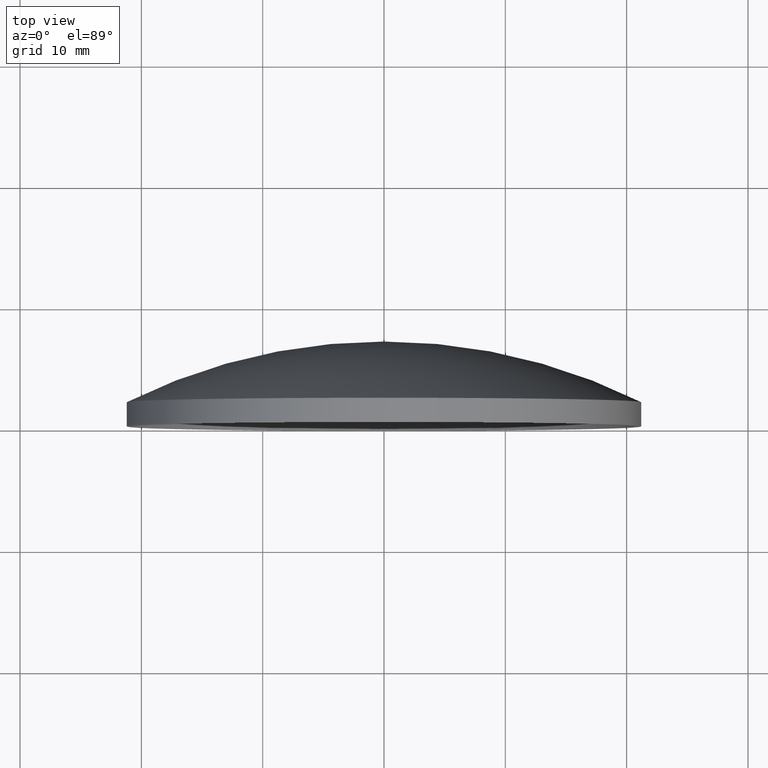
[diagram: clean part render]
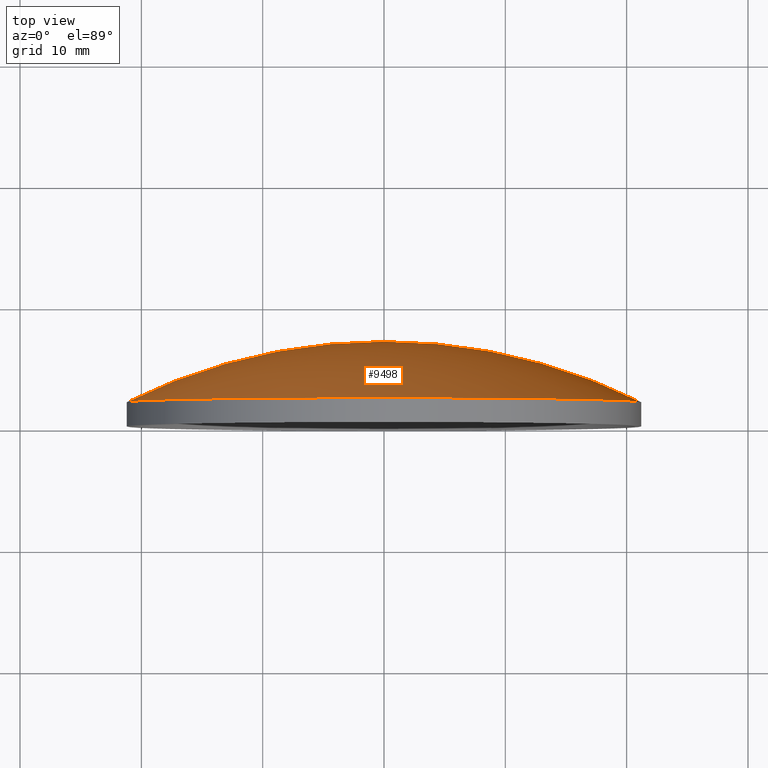
[diagram: same view with one face highlighted and labeled with its STEP entity id]
A machine part, top view. The second image highlights one B-rep face of the part: STEP entity #9498.
In plain terms, the highlighted spherical surface has radius 47.444 mm.
Its self-contained STEP definition (entity closure, byte-faithful):
#58 = ORIENTED_EDGE ( 'NONE', *, *, #5746, .T. ) ;
#220 = SPHERICAL_SURFACE ( 'NONE', #6453, 47.44399999999998800 ) ;
#389 = AXIS2_PLACEMENT_3D ( 'NONE', #6161, #582, #9116 ) ;
#582 = DIRECTION ( 'NONE',  ( 1.224646799147353200E-016, -8.490003973790729900E-031, 1.000000000000000000 ) ) ;
#1004 = CIRCLE ( 'NONE', #6683, 21.20000000000001700 ) ;
#1650 = CARTESIAN_POINT ( 'NONE',  ( -21.20000000000003800, 2.000000000000302900, 2.596251214192391500E-015 ) ) ;
#2028 = EDGE_CURVE ( 'NONE', #4218, #6883, #7056, .T. ) ;
#2668 = CIRCLE ( 'NONE', #389, 47.44399999999998800 ) ;
#3718 = DIRECTION ( 'NONE',  ( 1.000000000000000000, -6.934802574954447400E-015, 0.0000000000000000000 ) ) ;
#3758 = DIRECTION ( 'NONE',  ( -6.932614350277811200E-015, -1.000000000000000000, -0.0000000000000000000 ) ) ;
#4218 = VERTEX_POINT ( 'NONE', #8661 ) ;
#5746 = EDGE_CURVE ( 'NONE', #4218, #12051, #2668, .T. ) ;
#6052 = CARTESIAN_POINT ( 'NONE',  ( 21.19999999999999600, 2.000000000000008900, 0.0000000000000000000 ) ) ;
#6161 = CARTESIAN_POINT ( 'NONE',  ( 1.386522870055565900E-014, -40.44399999999998800, 0.0000000000000000000 ) ) ;
#6162 = EDGE_CURVE ( 'NONE', #6883, #12051, #1004, .T. ) ;
#6453 = AXIS2_PLACEMENT_3D ( 'NONE', #8560, #10434, #8639 ) ;
#6485 = CARTESIAN_POINT ( 'NONE',  ( -2.079784305083228800E-014, 2.000000000000155900, 0.0000000000000000000 ) ) ;
#6683 = AXIS2_PLACEMENT_3D ( 'NONE', #6485, #3758, #3718 ) ;
#6815 = FACE_OUTER_BOUND ( 'NONE', #6914, .T. ) ;
#6883 = VERTEX_POINT ( 'NONE', #6052 ) ;
#6914 = EDGE_LOOP ( 'NONE', ( #7422, #58, #9324 ) ) ;
#7056 = CIRCLE ( 'NONE', #11313, 47.44399999999998800 ) ;
#7422 = ORIENTED_EDGE ( 'NONE', *, *, #2028, .F. ) ;
#8506 = CARTESIAN_POINT ( 'NONE',  ( 1.386522870055565900E-014, -40.44399999999998800, 0.0000000000000000000 ) ) ;
#8560 = CARTESIAN_POINT ( 'NONE',  ( 1.386522870055565900E-014, -40.44399999999998800, 0.0000000000000000000 ) ) ;
#8589 = DIRECTION ( 'NONE',  ( 0.0000000000000000000, 0.0000000000000000000, -1.000000000000000000 ) ) ;
#8639 = DIRECTION ( 'NONE',  ( 1.000000000000000000, -6.873956948900595300E-015, 0.0000000000000000000 ) ) ;
#8661 = CARTESIAN_POINT ( 'NONE',  ( 3.456812910720733900E-013, 6.999999999999999100, 0.0000000000000000000 ) ) ;
#9116 = DIRECTION ( 'NONE',  ( 1.000000000000000000, 0.0000000000000000000, -1.224646799147353200E-016 ) ) ;
#9324 = ORIENTED_EDGE ( 'NONE', *, *, #6162, .F. ) ;
#9498 = ADVANCED_FACE ( 'NONE', ( #6815 ), #220, .T. ) ;
#10307 = DIRECTION ( 'NONE',  ( -1.000000000000000000, 0.0000000000000000000, 0.0000000000000000000 ) ) ;
#10434 = DIRECTION ( 'NONE',  ( -0.0000000000000000000, 0.0000000000000000000, 1.000000000000000000 ) ) ;
#11313 = AXIS2_PLACEMENT_3D ( 'NONE', #8506, #8589, #10307 ) ;
#12051 = VERTEX_POINT ( 'NONE', #1650 ) ;